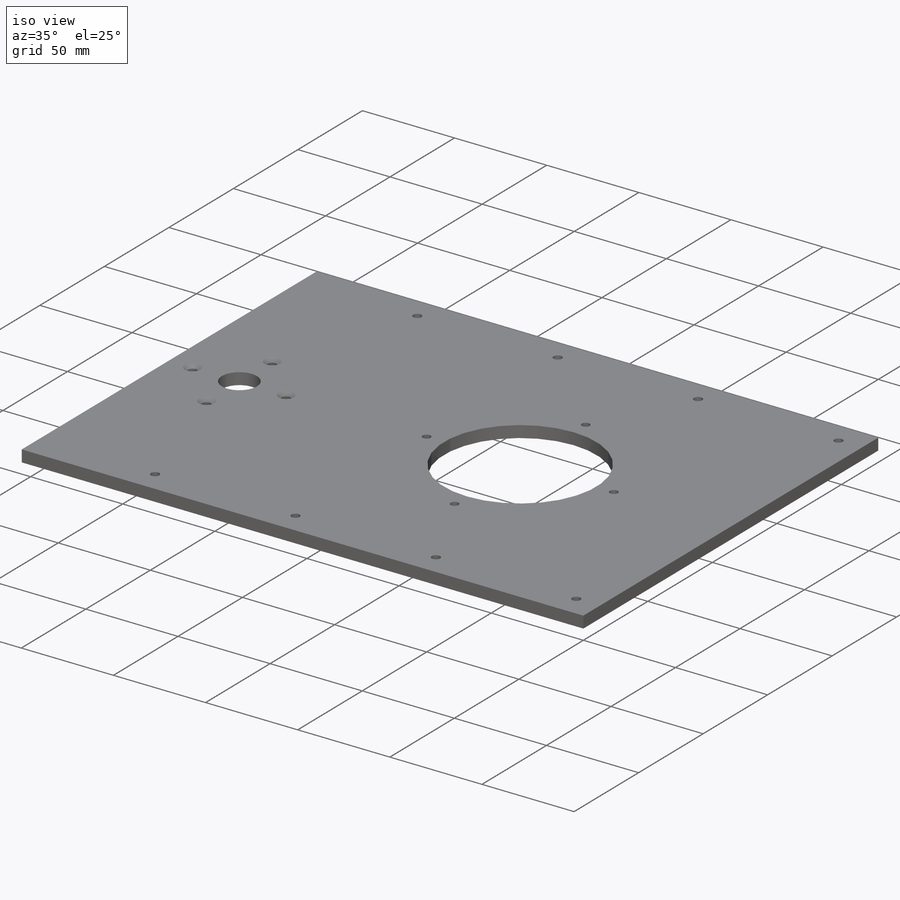
[diagram: iso view]
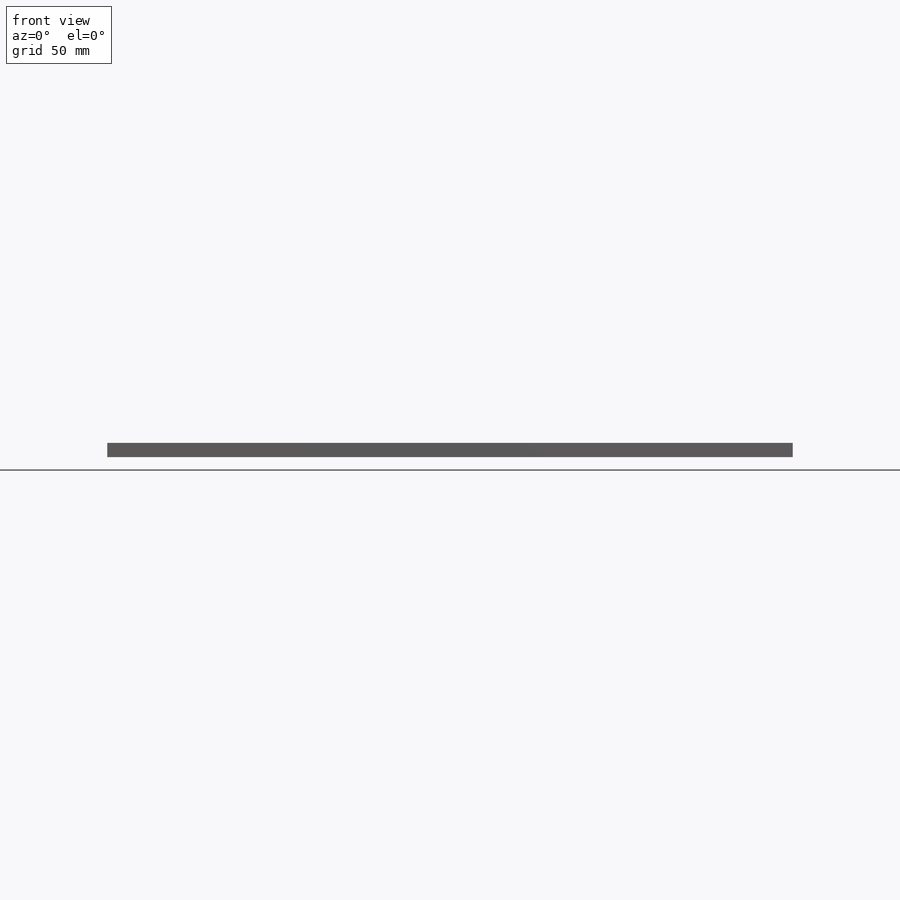
[diagram: front view]
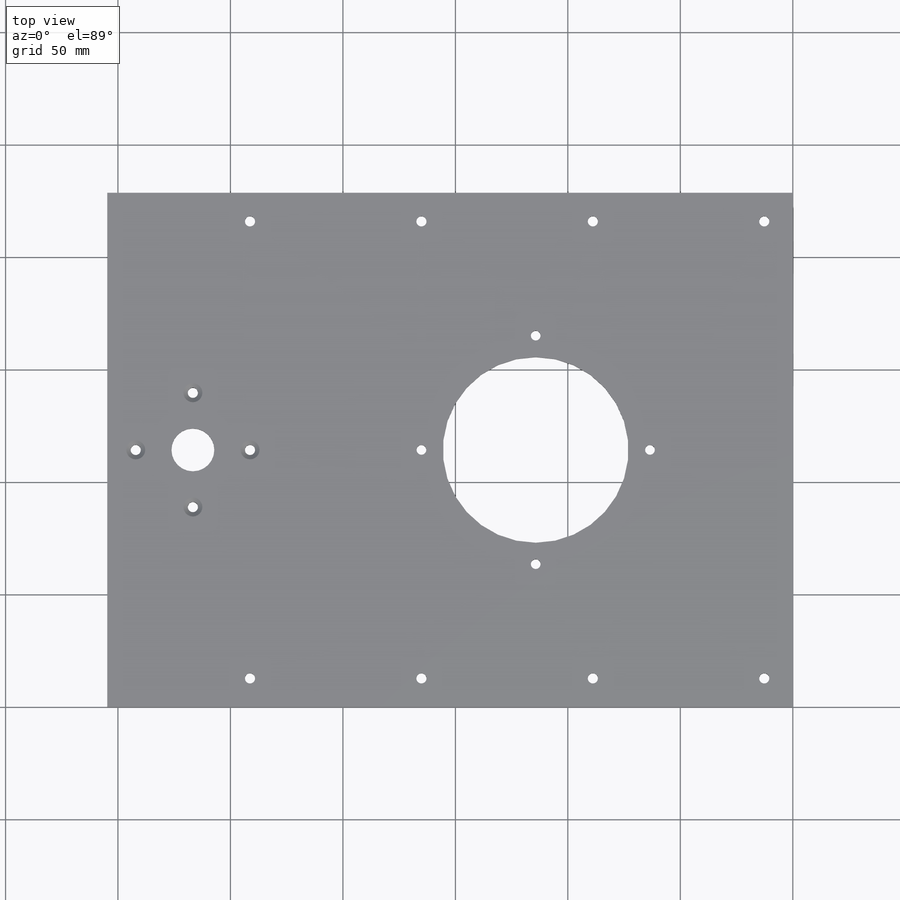
[diagram: top view]
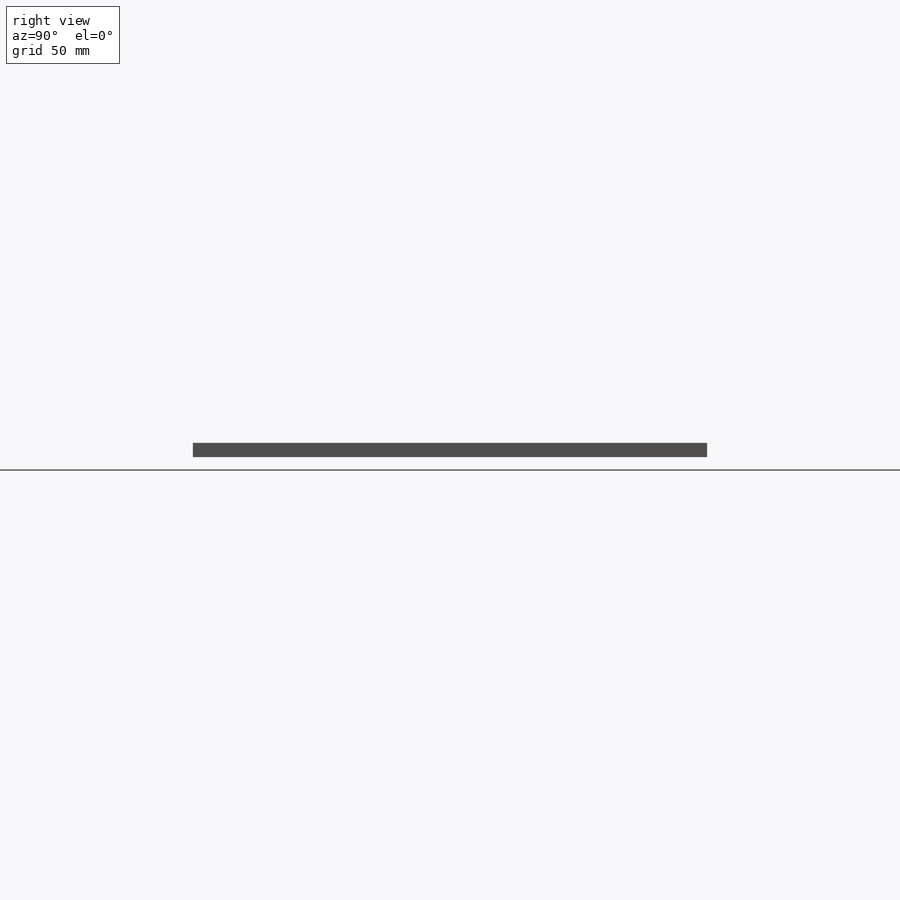
[diagram: right view]
SOLIDWORKS PART (.sldprt)
format: sldprt  version: not decoded by parser v0  size: 305,664 bytes
history: native  units: mm
features: sketch x10, hole x3, pattern_circular x2, cut_extrude x2, material x1, extrude x1, pattern_linear x1 (+16 scaffold rows collapsed)
feature tree (36):
  scaffold x16  (default folders/planes/origin — collapsed)
  material  "Material <not specified>"
  sketch  "Sketch1"  dims[D1=304.8mm D2=228.6mm]
  extrude  "Boss-Extrude1"  Depth=6.35mm
  sketch  "Sketch2"  dims[D1=114.3mm D2=114.3mm]
  hole  "CSK for #8 Flat Head Machine Screw (100)1"  Diameter=4.3053mm Depth=6.35mm
  sketch  "Sketch4"  dims[D1=50.8mm]
  sketch  "Sketch3"  dims[hole-wizard template sketch: 55 standard entries collapsed; hole parameters kept: c17.Thru Hole Depth=6.35mm c17.Near C'Sink Dia.=8.4328mm c17.D4=~3.666174mm c17.Near C'Sink Angle=100.0deg]
  pattern_circular  "CirPattern1"  Count=4 Angle=360deg
  sketch  "Sketch5"  dims[D1=82.55mm]
  cut_extrude  "Cut-Extrude1"  [1 undecoded]
  hole  "CSK for #8 Flat Head Machine Screw (100)2"  Diameter=4.4958mm Depth=6.35mm
  sketch  "Sketch7"  dims[D1=203.2mm D2=12.7mm D3=38.1mm D4=12.7mm]
  sketch  "Sketch6"  dims[hole-wizard template sketch: 55 standard entries collapsed; hole parameters kept: c17.Thru Hole Depth=6.35mm c17.Near C'Sink Dia.=8.4328mm c17.D4=~3.666174mm c17.Near C'Sink Angle=100.0deg]
  pattern_linear  "LPattern1"  Count1=4 Count2=1 Spacing1=76.2mm Spacing2=50mm
  sketch  "Sketch8"  dims[D1=19.05mm D2=114.3mm D3=38.1mm]
  cut_extrude  "Cut-Extrude2"  [1 undecoded]
  hole  "CSK for #8 Flat Head Machine Screw (100)3"  Diameter=4.4958mm Depth=6.35mm
  sketch  "Sketch10"  dims[D1=25.4mm]
  sketch  "Sketch9"  dims[hole-wizard template sketch: 55 standard entries collapsed; hole parameters kept: c17.Thru Hole Depth=6.35mm c17.Near C'Sink Dia.=8.4328mm c17.D4=~3.666174mm c17.Near C'Sink Angle=100.0deg]
  pattern_circular  "CirPattern2"  Count=4 Angle=360deg
decode coverage: 17 of 19 modeling features carry decoded parameters
note: ~ marks probable driven/reference dimensions
note: 2 parameter values undecoded
note: suppression state not decoded; provenance and decode notes live in map.json
